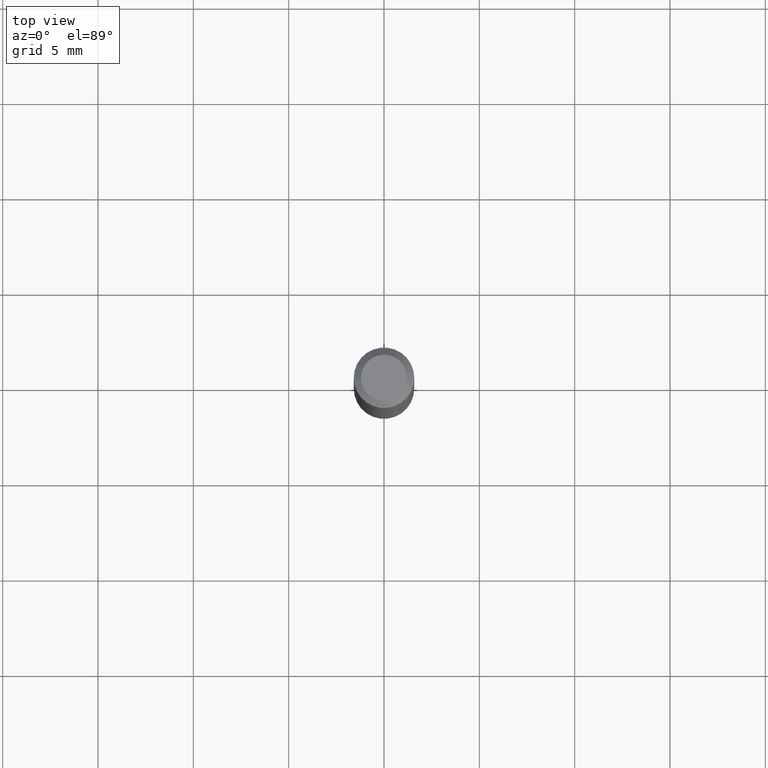
[diagram: clean part render]
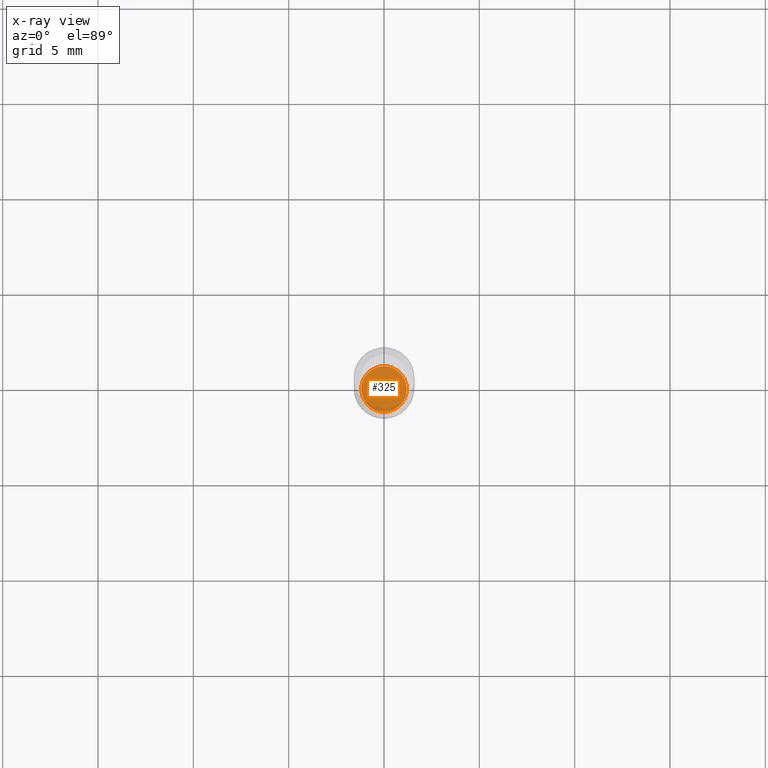
[diagram: x-ray — body ghosted, one internal face saturated and labeled with its STEP entity id]
A machine part, top view, then the same camera in x-ray: the body is ghosted and one INTERNAL B-rep face — a face not visible from any outside direction — is saturated and labeled: STEP entity #325.
In plain terms, the highlighted planar face has unit normal (-0, 0, 1).
Its self-contained STEP definition (entity closure, byte-faithful):
#2 = CIRCLE ( 'NONE', #447, 0.04699999999999999317 ) ;
#18 = DIRECTION ( 'NONE',  ( -2.445468806185136597E-29, 3.491481338843145583E-15, 1.000000000000000000 ) ) ;
#30 = VERTEX_POINT ( 'NONE', #76 ) ;
#44 = PLANE ( 'NONE',  #277 ) ;
#76 = CARTESIAN_POINT ( 'NONE',  ( -0.04699999999999999317, -4.401335863828790638E-15, -1.356999999999999984 ) ) ;
#95 = DIRECTION ( 'NONE',  ( -2.445468806185136597E-29, 3.491481338843145583E-15, 1.000000000000000000 ) ) ;
#113 = EDGE_LOOP ( 'NONE', ( #209, #384 ) ) ;
#116 = AXIS2_PLACEMENT_3D ( 'NONE', #460, #95, #187 ) ;
#187 = DIRECTION ( 'NONE',  ( 1.000000000000000000, -6.982962677686272233E-15, 0.000000000000000000 ) ) ;
#191 = FACE_OUTER_BOUND ( 'NONE', #113, .T. ) ;
#209 = ORIENTED_EDGE ( 'NONE', *, *, #416, .F. ) ;
#216 = DIRECTION ( 'NONE',  ( -2.438088387897960049E-29, 3.491481338843145188E-15, 1.000000000000000000 ) ) ;
#276 = EDGE_CURVE ( 'NONE', #30, #279, #2, .T. ) ;
#277 = AXIS2_PLACEMENT_3D ( 'NONE', #446, #216, #329 ) ;
#279 = VERTEX_POINT ( 'NONE', #459 ) ;
#285 = CARTESIAN_POINT ( 'NONE',  ( 3.318501169993230375E-29, -4.737940176810148435E-15, -1.356999999999999984 ) ) ;
#287 = DIRECTION ( 'NONE',  ( 1.000000000000000000, -6.982962677686272233E-15, 0.000000000000000000 ) ) ;
#325 = ADVANCED_FACE ( 'NONE', ( #191 ), #44, .F. ) ;
#329 = DIRECTION ( 'NONE',  ( 1.000000000000000000, -6.982962677686265922E-15, 4.876176775795935793E-29 ) ) ;
#334 = CIRCLE ( 'NONE', #116, 0.04699999999999999317 ) ;
#384 = ORIENTED_EDGE ( 'NONE', *, *, #276, .F. ) ;
#416 = EDGE_CURVE ( 'NONE', #279, #30, #334, .T. ) ;
#446 = CARTESIAN_POINT ( 'NONE',  ( 3.318501169993230375E-29, -4.737940176810148435E-15, -1.356999999999999984 ) ) ;
#447 = AXIS2_PLACEMENT_3D ( 'NONE', #285, #18, #287 ) ;
#459 = CARTESIAN_POINT ( 'NONE',  ( 0.04699999999999999317, -5.066139422661402938E-15, -1.356999999999999984 ) ) ;
#460 = CARTESIAN_POINT ( 'NONE',  ( 3.318501169993230375E-29, -4.737940176810148435E-15, -1.356999999999999984 ) ) ;